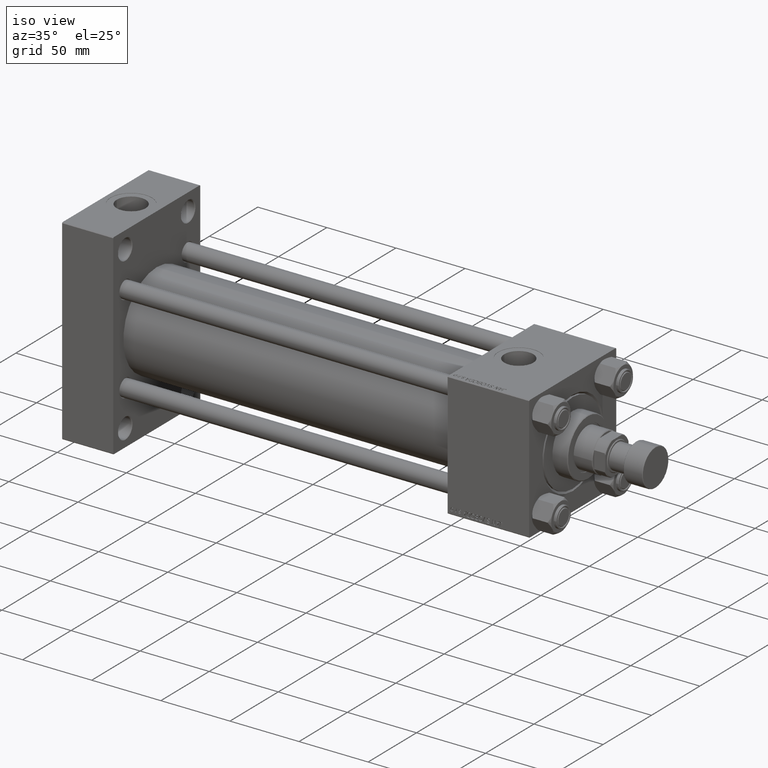
[diagram: clean part render]
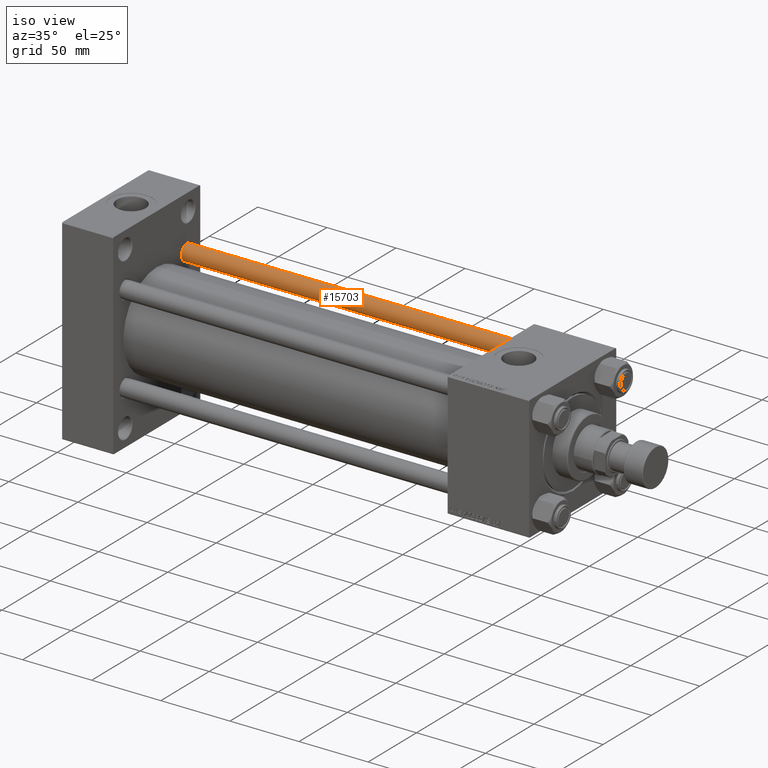
[diagram: same view with one face highlighted and labeled with its STEP entity id]
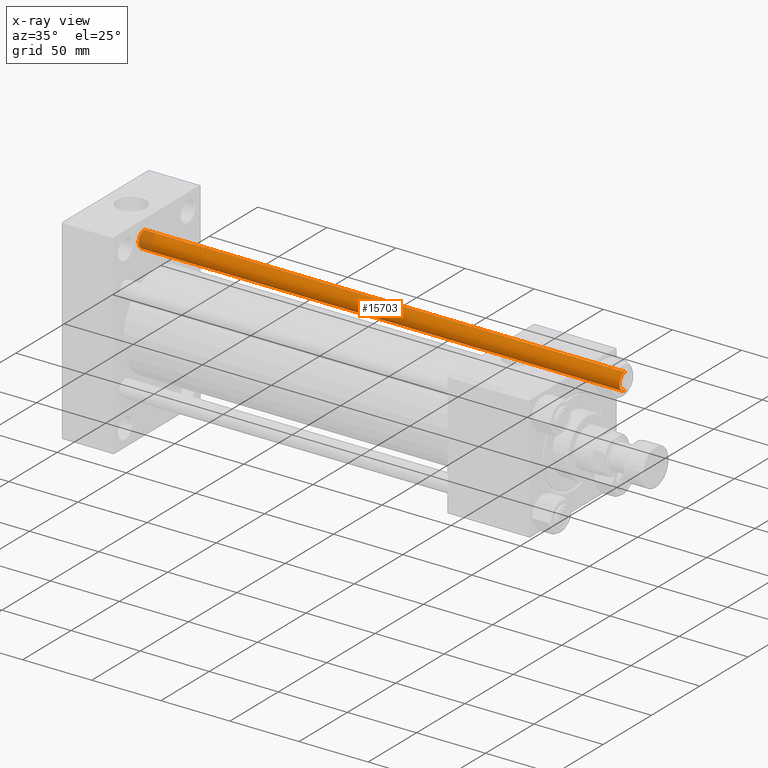
[diagram: x-ray of the same camera — body ghosted, the highlighted face saturated]
A machine part, iso view. The second image highlights one B-rep face of the part: STEP entity #15703.
The next image is the same camera in x-ray: the body ghosted, the highlighted face saturated — about 3% of this face is hidden behind the body in this view.
In plain terms, the highlighted cylindrical surface (edge-blend (fillet) strip) has radius 6 mm, axis along (1, 0, 0).
Its self-contained STEP definition (entity closure, byte-faithful):
#426 = VERTEX_POINT ( 'NONE', #40787 ) ;
#976 = ORIENTED_EDGE ( 'NONE', *, *, #31012, .T. ) ;
#2075 = LINE ( 'NONE', #13764, #10219 ) ;
#5145 = DIRECTION ( 'NONE',  ( -0.000000000000000000, -0.000000000000000000, -1.000000000000000000 ) ) ;
#5607 = ORIENTED_EDGE ( 'NONE', *, *, #15529, .T. ) ;
#5662 = CARTESIAN_POINT ( 'NONE',  ( 6.000000000000000888, 7.347880794884120722E-16, 349.0000000000000000 ) ) ;
#8081 = DIRECTION ( 'NONE',  ( 0.000000000000000000, 0.000000000000000000, -1.000000000000000000 ) ) ;
#8259 = ORIENTED_EDGE ( 'NONE', *, *, #37983, .F. ) ;
#10025 = VERTEX_POINT ( 'NONE', #32092 ) ;
#10219 = VECTOR ( 'NONE', #18532, 1000.000000000000000 ) ;
#13363 = LINE ( 'NONE', #5662, #21957 ) ;
#13764 = CARTESIAN_POINT ( 'NONE',  ( -6.000000000000000888, 0.000000000000000000, 349.0000000000000000 ) ) ;
#15529 = EDGE_CURVE ( 'NONE', #28998, #31867, #13363, .T. ) ;
#15703 = ADVANCED_FACE ( 'NONE', ( #43090 ), #22125, .T. ) ;
#18277 = ORIENTED_EDGE ( 'NONE', *, *, #31953, .T. ) ;
#18532 = DIRECTION ( 'NONE',  ( -0.000000000000000000, -0.000000000000000000, -1.000000000000000000 ) ) ;
#20354 = AXIS2_PLACEMENT_3D ( 'NONE', #36513, #8081, #37045 ) ;
#21957 = VECTOR ( 'NONE', #5145, 1000.000000000000000 ) ;
#22125 = CYLINDRICAL_SURFACE ( 'NONE', #40617, 6.000000000000000888 ) ;
#24355 = DIRECTION ( 'NONE',  ( 1.000000000000000000, 0.000000000000000000, 0.000000000000000000 ) ) ;
#26624 = CARTESIAN_POINT ( 'NONE',  ( 0.000000000000000000, 0.000000000000000000, 349.0000000000000000 ) ) ;
#27147 = DIRECTION ( 'NONE',  ( -1.000000000000000000, 0.000000000000000000, 0.000000000000000000 ) ) ;
#28998 = VERTEX_POINT ( 'NONE', #50860 ) ;
#30346 = DIRECTION ( 'NONE',  ( -0.000000000000000000, -0.000000000000000000, -1.000000000000000000 ) ) ;
#31012 = EDGE_CURVE ( 'NONE', #31867, #10025, #50872, .T. ) ;
#31867 = VERTEX_POINT ( 'NONE', #51426 ) ;
#31953 = EDGE_CURVE ( 'NONE', #426, #28998, #41565, .T. ) ;
#32092 = CARTESIAN_POINT ( 'NONE',  ( -6.000000000000000888, 0.000000000000000000, 0.5000000000000559552 ) ) ;
#33895 = AXIS2_PLACEMENT_3D ( 'NONE', #49608, #49341, #24355 ) ;
#36513 = CARTESIAN_POINT ( 'NONE',  ( 0.000000000000000000, 0.000000000000000000, 348.5000000000000568 ) ) ;
#37045 = DIRECTION ( 'NONE',  ( 1.000000000000000000, 0.000000000000000000, 0.000000000000000000 ) ) ;
#37983 = EDGE_CURVE ( 'NONE', #426, #10025, #2075, .T. ) ;
#40617 = AXIS2_PLACEMENT_3D ( 'NONE', #26624, #30346, #27147 ) ;
#40787 = CARTESIAN_POINT ( 'NONE',  ( -6.000000000000000888, 0.000000000000000000, 348.5000000000000568 ) ) ;
#41565 = CIRCLE ( 'NONE', #20354, 6.000000000000000888 ) ;
#43090 = FACE_OUTER_BOUND ( 'NONE', #43269, .T. ) ;
#43269 = EDGE_LOOP ( 'NONE', ( #18277, #5607, #976, #8259 ) ) ;
#49341 = DIRECTION ( 'NONE',  ( -0.000000000000000000, -0.000000000000000000, 1.000000000000000000 ) ) ;
#49608 = CARTESIAN_POINT ( 'NONE',  ( 0.000000000000000000, 0.000000000000000000, 0.5000000000000559552 ) ) ;
#50860 = CARTESIAN_POINT ( 'NONE',  ( 6.000000000000000888, 7.347880794884120722E-16, 348.5000000000000568 ) ) ;
#50872 = CIRCLE ( 'NONE', #33895, 6.000000000000000888 ) ;
#51426 = CARTESIAN_POINT ( 'NONE',  ( 6.000000000000000888, 7.347880794884120722E-16, 0.5000000000000559552 ) ) ;